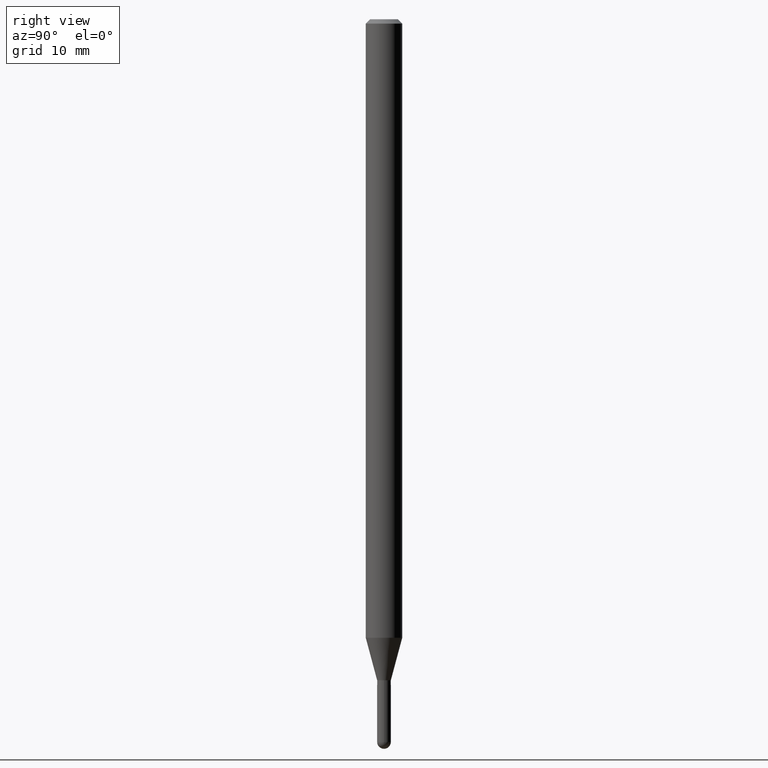
[diagram: clean part render]
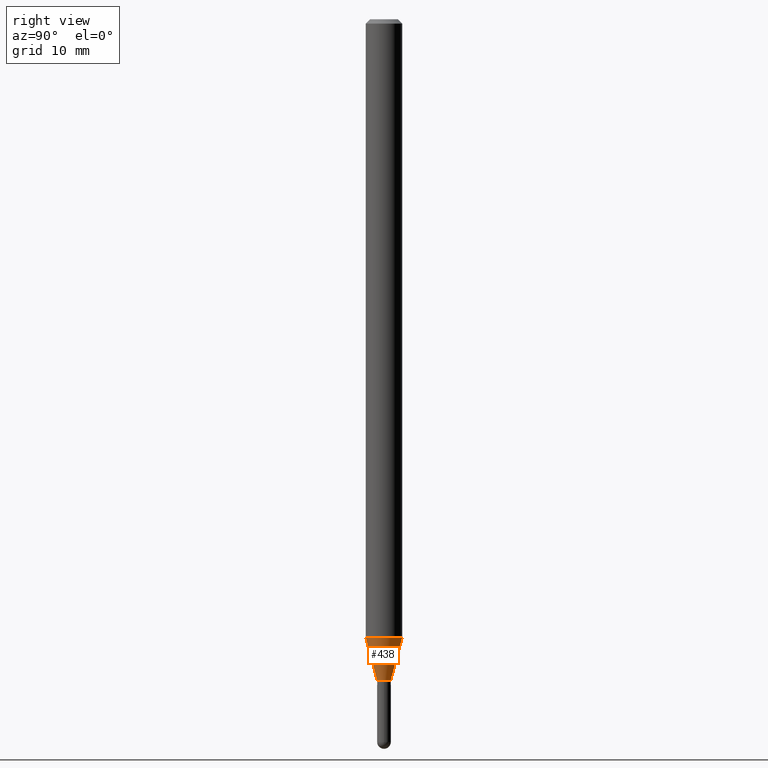
[diagram: same view with one face highlighted and labeled with its STEP entity id]
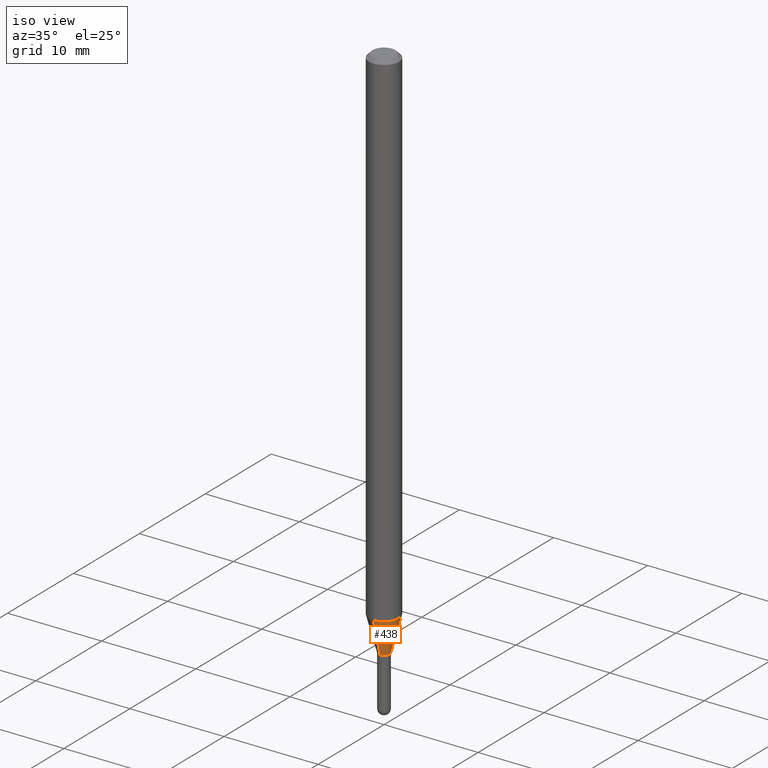
[diagram: same view with one face highlighted and labeled with its STEP entity id]
A machine part, right view. The second image highlights one B-rep face of the part: STEP entity #438.
A second angle (iso view) of the same face is appended — the face is thin or edge-on in the first view.
In plain terms, the highlighted conical surface has half-angle 15 deg.
Its self-contained STEP definition (entity closure, byte-faithful):
#14 = VERTEX_POINT ( 'NONE', #426 ) ;
#20 = CARTESIAN_POINT ( 'NONE',  ( 5.183026025228223920E-29, -7.400052955535410422E-15, -2.119450018504819067 ) ) ;
#27 = ORIENTED_EDGE ( 'NONE', *, *, #286, .T. ) ;
#74 = DIRECTION ( 'NONE',  ( 1.839019923739650408E-15, 0.2588190451025319527, 0.9659258262890650926 ) ) ;
#92 = VECTOR ( 'NONE', #277, 39.37007874015748143 ) ;
#97 = VERTEX_POINT ( 'NONE', #120 ) ;
#105 = CARTESIAN_POINT ( 'NONE',  ( 5.538962393377729959E-29, -7.908240250039939287E-15, -2.265000000000000124 ) ) ;
#111 = CARTESIAN_POINT ( 'NONE',  ( 1.669775429036802928E-16, 0.02349999999999228747, -2.265000000000000124 ) ) ;
#118 = AXIS2_PLACEMENT_3D ( 'NONE', #322, #478, #491 ) ;
#120 = CARTESIAN_POINT ( 'NONE',  ( 3.055333763768974376E-16, 0.02349999999999228401, -2.265000000000000124 ) ) ;
#130 = EDGE_CURVE ( 'NONE', #330, #194, #501, .T. ) ;
#155 = CONICAL_SURFACE ( 'NONE', #118, 0.02350000000000019781, 0.2617993877991575680 ) ;
#167 = CARTESIAN_POINT ( 'NONE',  ( -1.640996229255732643E-16, -0.02350000000000810815, -2.265000000000000124 ) ) ;
#172 = CIRCLE ( 'NONE', #381, 0.02350000000000019781 ) ;
#178 = AXIS2_PLACEMENT_3D ( 'NONE', #20, #449, #329 ) ;
#194 = VERTEX_POINT ( 'NONE', #345 ) ;
#226 = EDGE_CURVE ( 'NONE', #97, #14, #390, .T. ) ;
#277 = DIRECTION ( 'NONE',  ( -1.807323732225379443E-15, -0.2588190451025252359, 0.9659258262890670910 ) ) ;
#286 = EDGE_CURVE ( 'NONE', #330, #97, #172, .T. ) ;
#290 = FACE_OUTER_BOUND ( 'NONE', #462, .T. ) ;
#302 = ORIENTED_EDGE ( 'NONE', *, *, #130, .F. ) ;
#322 = CARTESIAN_POINT ( 'NONE',  ( 5.538962393377729959E-29, -7.908240250039939287E-15, -2.265000000000000124 ) ) ;
#329 = DIRECTION ( 'NONE',  ( -6.982962677686265922E-15, -1.000000000000000000, 4.370956789862821150E-15 ) ) ;
#330 = VERTEX_POINT ( 'NONE', #167 ) ;
#332 = CIRCLE ( 'NONE', #178, 0.06250000000000000000 ) ;
#345 = CARTESIAN_POINT ( 'NONE',  ( -4.364351673553400483E-16, -0.06250000000000742462, -2.119450018504819067 ) ) ;
#356 = ORIENTED_EDGE ( 'NONE', *, *, #442, .F. ) ;
#381 = AXIS2_PLACEMENT_3D ( 'NONE', #105, #421, #461 ) ;
#390 = LINE ( 'NONE', #111, #464 ) ;
#421 = DIRECTION ( 'NONE',  ( -2.445458010321293800E-29, 3.491496799134631242E-15, 1.000000000000000000 ) ) ;
#426 = CARTESIAN_POINT ( 'NONE',  ( 4.440892098501141880E-16, 0.06249999999999258232, -2.119450018504819511 ) ) ;
#438 = ADVANCED_FACE ( 'NONE', ( #290 ), #155, .T. ) ;
#442 = EDGE_CURVE ( 'NONE', #194, #14, #332, .T. ) ;
#449 = DIRECTION ( 'NONE',  ( -2.445458010321293800E-29, 3.491496799134631242E-15, 1.000000000000000000 ) ) ;
#461 = DIRECTION ( 'NONE',  ( -6.982962677686265922E-15, -1.000000000000000000, 0.000000000000000000 ) ) ;
#462 = EDGE_LOOP ( 'NONE', ( #27, #510, #356, #302 ) ) ;
#464 = VECTOR ( 'NONE', #74, 39.37007874015748854 ) ;
#478 = DIRECTION ( 'NONE',  ( -2.445458010321293800E-29, 3.491496799134631242E-15, 1.000000000000000000 ) ) ;
#491 = DIRECTION ( 'NONE',  ( -6.982962677686265922E-15, -1.000000000000000000, 0.000000000000000000 ) ) ;
#501 = LINE ( 'NONE', #504, #92 ) ;
#504 = CARTESIAN_POINT ( 'NONE',  ( -1.640996229255732643E-16, -0.02350000000000810815, -2.265000000000000124 ) ) ;
#510 = ORIENTED_EDGE ( 'NONE', *, *, #226, .T. ) ;